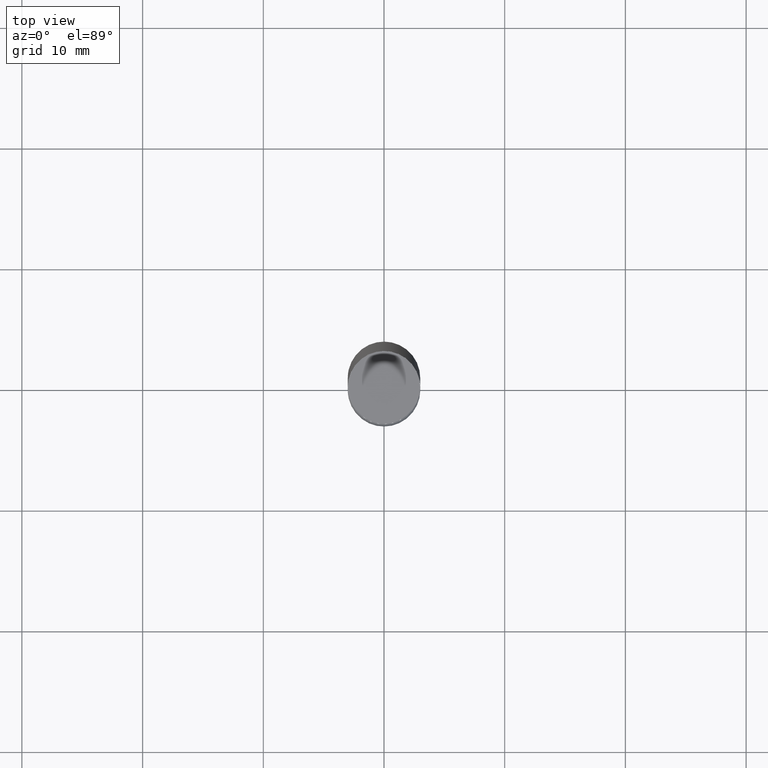
[diagram: clean part render]
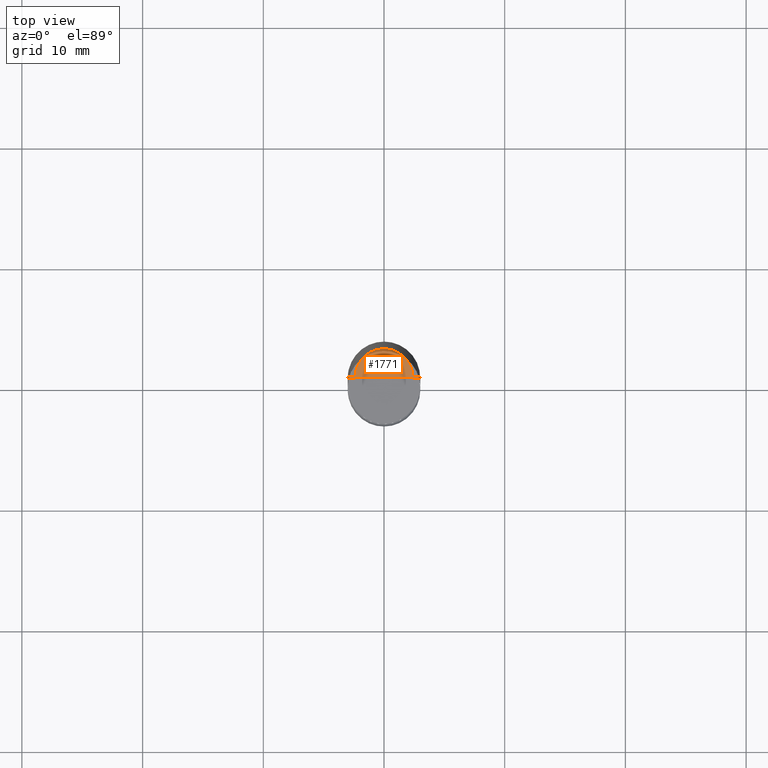
[diagram: same view with one face highlighted and labeled with its STEP entity id]
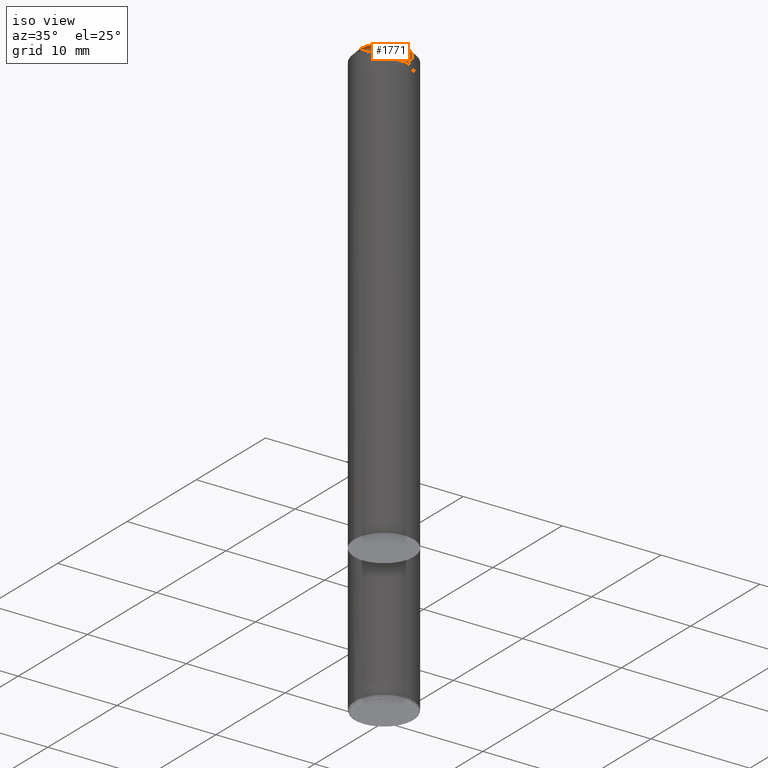
[diagram: same view with one face highlighted and labeled with its STEP entity id]
A machine part, top view. The second image highlights one B-rep face of the part: STEP entity #1771.
A second angle (iso view) of the same face is appended — the face is thin or edge-on in the first view.
In plain terms, the highlighted face is a freeform B-spline surface patch.
Its self-contained STEP definition (entity closure, byte-faithful):
#1531=CARTESIAN_POINT('',(2.4,0.0,45.0));
#1532=CARTESIAN_POINT('',(2.4,2.4,45.0));
#1533=CARTESIAN_POINT('',(0.0,2.4,45.0));
#1534=CARTESIAN_POINT('',(-2.4,2.4,45.0));
#1535=CARTESIAN_POINT('',(-2.4,0.0,45.0));
#1536=CARTESIAN_POINT('',(0.0,0.0,45.0));
#1756=(
BOUNDED_SURFACE()
B_SPLINE_SURFACE(1,2,(
(#1531,#1532,#1533,#1534,#1535),
(#1536,#1536,#1536,#1536,#1536)
), .UNSPECIFIED.,.F.,.F.,.F.)
B_SPLINE_SURFACE_WITH_KNOTS((2,2),(3,2,3),(
0.0,1.0),(
0.0,0.5,1.0), .UNSPECIFIED.)
GEOMETRIC_REPRESENTATION_ITEM()
RATIONAL_B_SPLINE_SURFACE(((1.0,0.707106781187,1.0,0.707106781187,1.0),
(1.0,0.707106781187,1.0,0.707106781187,1.0)
))
REPRESENTATION_ITEM('')
SURFACE()
);
#1757=(
BOUNDED_CURVE()
B_SPLINE_CURVE(1,(#1536,#1531),.UNSPECIFIED.,.F.,.F.)
B_SPLINE_CURVE_WITH_KNOTS((2,2),
(0.0,1.0),.UNSPECIFIED.)
CURVE()
GEOMETRIC_REPRESENTATION_ITEM()
RATIONAL_B_SPLINE_CURVE((1.0,1.0))
REPRESENTATION_ITEM('')
);
#1758=(
BOUNDED_CURVE()
B_SPLINE_CURVE(2,(#1531,#1532,#1533,#1534,#1535),.UNSPECIFIED.,.F.,.F.)
B_SPLINE_CURVE_WITH_KNOTS((3,2,3),
(0.0,0.5,1.0),.UNSPECIFIED.)
CURVE()
GEOMETRIC_REPRESENTATION_ITEM()
RATIONAL_B_SPLINE_CURVE((1.0,0.707106781187,1.0,0.707106781187,1.0))
REPRESENTATION_ITEM('')
);
#1759=(
BOUNDED_CURVE()
B_SPLINE_CURVE(1,(#1535,#1536),.UNSPECIFIED.,.F.,.F.)
B_SPLINE_CURVE_WITH_KNOTS((2,2),
(0.0,1.0),.UNSPECIFIED.)
CURVE()
GEOMETRIC_REPRESENTATION_ITEM()
RATIONAL_B_SPLINE_CURVE((1.0,1.0))
REPRESENTATION_ITEM('')
);
#1760=VERTEX_POINT('',#1531);
#1761=VERTEX_POINT('',#1535);
#1762=VERTEX_POINT('',#1536);
#1763=EDGE_CURVE('',#1762,#1760,#1757,.T.);
#1764=EDGE_CURVE('',#1760,#1761,#1758,.T.);
#1765=EDGE_CURVE('',#1761,#1762,#1759,.T.);
#1766=ORIENTED_EDGE('',*,*,#1763,.T.);
#1767=ORIENTED_EDGE('',*,*,#1764,.T.);
#1768=ORIENTED_EDGE('',*,*,#1765,.T.);
#1769=EDGE_LOOP('',(#1766,#1767,#1768));
#1770=FACE_OUTER_BOUND('',#1769,.T.);
#1771=ADVANCED_FACE('',(#1770),#1756,.T.);